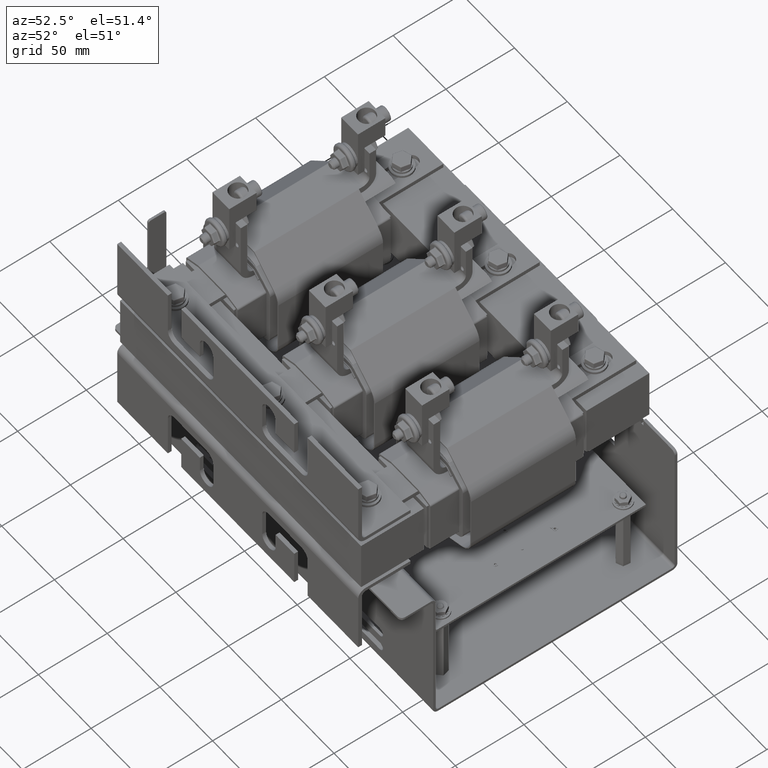
[diagram: clean part render]
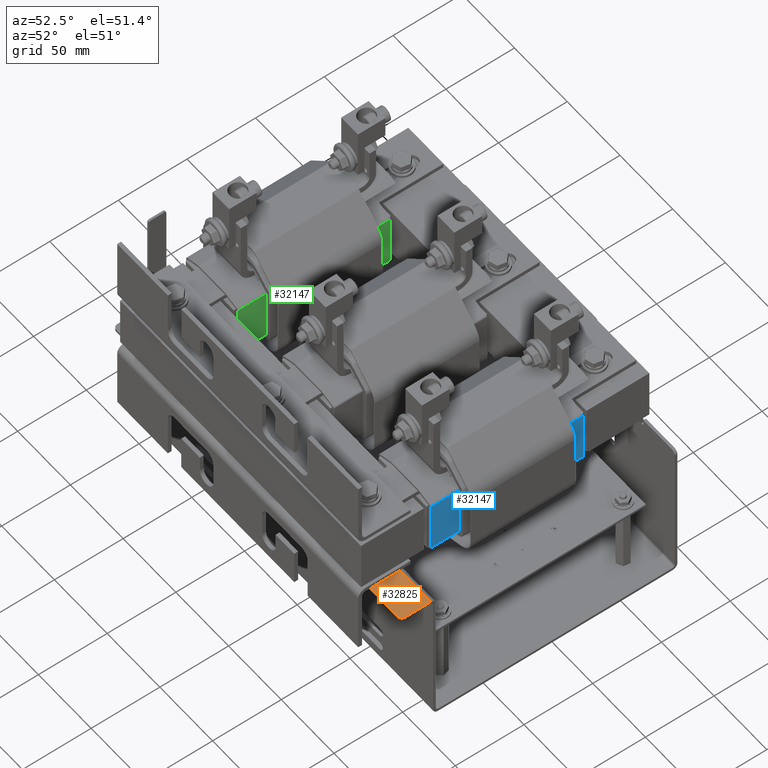
[diagram: same view with three faces highlighted in distinct colors, each labeled with its STEP entity id]
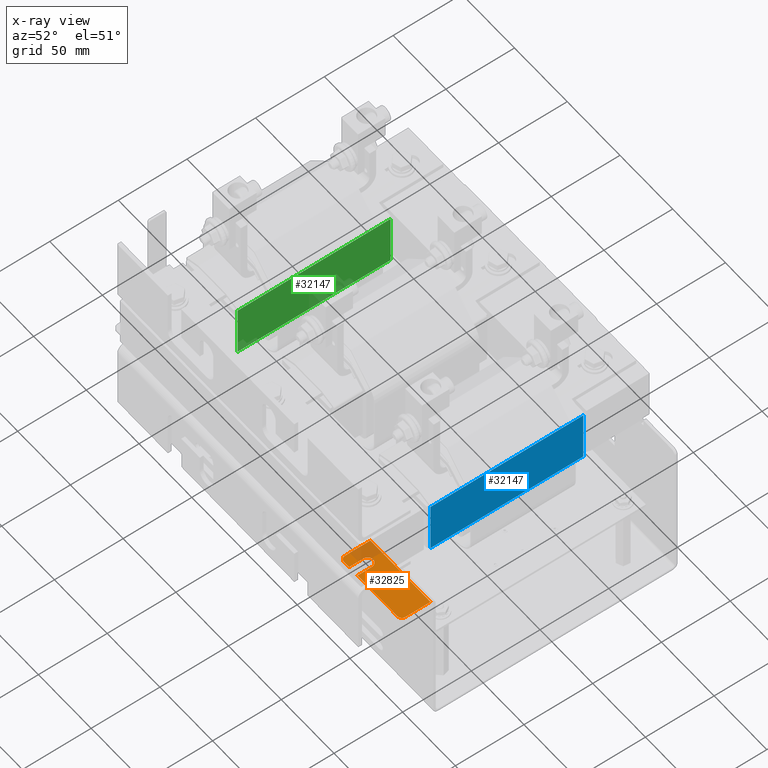
[diagram: x-ray of the same camera — body ghosted, the three highlighted faces saturated]
A machine part, auxiliary view with three faces highlighted in distinct colors.
The next image is the same camera in x-ray (body ghosted, the three faces saturated) — at least one of them is partly hidden behind the body in this view.
Their STEP definitions:

[orange] entity #32825 — the highlighted planar face has unit normal (-0, -0, 1).
#2566=CIRCLE('',#35846,0.125);
#2570=CIRCLE('',#35853,0.125);
#2602=CIRCLE('',#35935,0.155);
#4896=FACE_OUTER_BOUND('',#6785,.T.);
#6785=EDGE_LOOP('',(#27953,#27954,#27955,#27956,#27957,#27958,#27959,#27960,
#27961,#27962));
#9637=LINE('',#55370,#12727);
#9646=LINE('',#55395,#12736);
#9742=LINE('',#55652,#12832);
#9746=LINE('',#55661,#12836);
#9752=LINE('',#55675,#12842);
#9753=LINE('',#55677,#12843);
#9797=LINE('',#55826,#12887);
#12727=VECTOR('',#42652,0.393700787401575);
#12736=VECTOR('',#42673,0.393700787401575);
#12832=VECTOR('',#42927,0.393700787401575);
#12836=VECTOR('',#42937,0.393700787401575);
#12842=VECTOR('',#42953,0.393700787401575);
#12843=VECTOR('',#42956,0.393700787401575);
#12887=VECTOR('',#43148,0.393700787401575);
#15737=VERTEX_POINT('',#55357);
#15738=VERTEX_POINT('',#55358);
#15742=VERTEX_POINT('',#55368);
#15750=VERTEX_POINT('',#55388);
#15751=VERTEX_POINT('',#55389);
#15752=VERTEX_POINT('',#55394);
#15833=VERTEX_POINT('',#55649);
#15834=VERTEX_POINT('',#55651);
#15835=VERTEX_POINT('',#55655);
#15836=VERTEX_POINT('',#55659);
#19805=EDGE_CURVE('',#15737,#15738,#2566,.T.);
#19811=EDGE_CURVE('',#15742,#15737,#9637,.T.);
#19820=EDGE_CURVE('',#15750,#15751,#2570,.T.);
#19823=EDGE_CURVE('',#15751,#15752,#9646,.T.);
#19950=EDGE_CURVE('',#15834,#15833,#9742,.T.);
#19953=EDGE_CURVE('',#15833,#15835,#2602,.T.);
#19955=EDGE_CURVE('',#15835,#15836,#9746,.T.);
#19962=EDGE_CURVE('',#15738,#15836,#9752,.T.);
#19963=EDGE_CURVE('',#15834,#15750,#9753,.T.);
#20039=EDGE_CURVE('',#15742,#15752,#9797,.T.);
#27953=ORIENTED_EDGE('',*,*,#19805,.F.);
#27954=ORIENTED_EDGE('',*,*,#19811,.F.);
#27955=ORIENTED_EDGE('',*,*,#20039,.T.);
#27956=ORIENTED_EDGE('',*,*,#19823,.F.);
#27957=ORIENTED_EDGE('',*,*,#19820,.F.);
#27958=ORIENTED_EDGE('',*,*,#19963,.F.);
#27959=ORIENTED_EDGE('',*,*,#19950,.T.);
#27960=ORIENTED_EDGE('',*,*,#19953,.T.);
#27961=ORIENTED_EDGE('',*,*,#19955,.T.);
#27962=ORIENTED_EDGE('',*,*,#19962,.F.);
#31276=PLANE('',#36023);
#32825=ADVANCED_FACE('',(#4896),#31276,.T.);
#35846=AXIS2_PLACEMENT_3D('',#55359,#42642,#42643);
#35853=AXIS2_PLACEMENT_3D('',#55390,#42667,#42668);
#35935=AXIS2_PLACEMENT_3D('',#55657,#42932,#42933);
#36023=AXIS2_PLACEMENT_3D('',#55840,#43164,#43165);
#42642=DIRECTION('center_axis',(4.22708294357799E-18,1.50618868851318E-15,
-1.));
#42643=DIRECTION('ref_axis',(0.70710678118655,-0.707106781186545,0.));
#42652=DIRECTION('',(4.52371820991719E-35,-1.,-1.7746205551435E-15));
#42667=DIRECTION('center_axis',(4.22708294357799E-18,1.50618868851318E-15,
-1.));
#42668=DIRECTION('ref_axis',(-0.70710678118655,-0.707106781186545,0.));
#42673=DIRECTION('',(-2.89359496970602E-32,1.,1.83585289510087E-15));
#42927=DIRECTION('',(-4.68158981324178E-31,1.,1.50618868851318E-15));
#42932=DIRECTION('center_axis',(4.22708294357799E-18,1.50618868851318E-15,
-1.));
#42933=DIRECTION('ref_axis',(-1.,-4.68074171752959E-31,0.));
#42937=DIRECTION('',(4.68158981324178E-31,-1.,-1.50618868851318E-15));
#42953=DIRECTION('',(-1.,-2.89359496970602E-32,4.52371820991199E-35));
#42956=DIRECTION('',(-1.,-2.89359496970602E-32,4.52371820991199E-35));
#43148=DIRECTION('',(-1.,-6.98912515960972E-33,-4.22708294357799E-18));
#43164=DIRECTION('center_axis',(-4.22708294357799E-18,-1.50618868851318E-15,
1.));
#43165=DIRECTION('ref_axis',(2.89359496970602E-32,-1.,-1.50618868851318E-15));
#55357=CARTESIAN_POINT('',(10.75,-0.8003,4.13));
#55358=CARTESIAN_POINT('',(10.625,-0.9253,4.13));
#55359=CARTESIAN_POINT('Origin',(10.625,-0.8003,4.13));
#55368=CARTESIAN_POINT('',(10.75,-0.0747000000000008,4.13));
#55370=CARTESIAN_POINT('',(10.75,-0.0747000000000008,4.13));
#55388=CARTESIAN_POINT('',(8.625,-0.9253,4.13));
#55389=CARTESIAN_POINT('',(8.5,-0.8003,4.13));
#55390=CARTESIAN_POINT('Origin',(8.625,-0.8003,4.13));
#55394=CARTESIAN_POINT('',(8.5,-0.0747000000000008,4.13));
#55395=CARTESIAN_POINT('',(8.5,0.0942674192806727,4.13));
#55649=CARTESIAN_POINT('',(8.82,-0.515300000000001,4.13));
#55651=CARTESIAN_POINT('',(8.82,-0.9253,4.13));
#55652=CARTESIAN_POINT('',(8.82,-0.713386218216391,4.13));
#55655=CARTESIAN_POINT('',(9.13,-0.515300000000001,4.13));
#55657=CARTESIAN_POINT('Origin',(8.975,-0.515300000000001,4.13));
#55659=CARTESIAN_POINT('',(9.13,-0.9253,4.13));
#55661=CARTESIAN_POINT('',(9.13,-0.465408145179832,4.13));
#55675=CARTESIAN_POINT('',(10.75,-0.9253,4.13));
#55677=CARTESIAN_POINT('',(10.75,-0.9253,4.13));
#55826=CARTESIAN_POINT('',(9.625,-0.0747000000000008,4.13));
#55840=CARTESIAN_POINT('Origin',(9.625,-0.415516290359664,4.13));

[blue] entity #32147 — the highlighted planar face has unit normal (1, 0, 0).
#4218=FACE_OUTER_BOUND('',#6047,.T.);
#6047=EDGE_LOOP('',(#24273,#24274,#24275,#24276));
#8526=LINE('',#51729,#11616);
#8527=LINE('',#51732,#11617);
#8528=LINE('',#51734,#11618);
#8529=LINE('',#51735,#11619);
#11616=VECTOR('',#39315,0.393700787401575);
#11617=VECTOR('',#39318,0.393700787401575);
#11618=VECTOR('',#39319,0.393700787401575);
#11619=VECTOR('',#39320,0.393700787401575);
#14640=VERTEX_POINT('',#51725);
#14641=VERTEX_POINT('',#51727);
#14642=VERTEX_POINT('',#51731);
#14643=VERTEX_POINT('',#51733);
#18184=EDGE_CURVE('',#14640,#14641,#8526,.T.);
#18185=EDGE_CURVE('',#14640,#14642,#8527,.T.);
#18186=EDGE_CURVE('',#14643,#14641,#8528,.T.);
#18187=EDGE_CURVE('',#14642,#14643,#8529,.T.);
#24273=ORIENTED_EDGE('',*,*,#18185,.F.);
#24274=ORIENTED_EDGE('',*,*,#18184,.T.);
#24275=ORIENTED_EDGE('',*,*,#18186,.F.);
#24276=ORIENTED_EDGE('',*,*,#18187,.F.);
#30889=PLANE('',#34736);
#32147=ADVANCED_FACE('',(#4218),#30889,.T.);
#34736=AXIS2_PLACEMENT_3D('',#51730,#39316,#39317);
#39315=DIRECTION('',(0.,0.,1.));
#39316=DIRECTION('center_axis',(-1.,1.45698559662311E-16,0.));
#39317=DIRECTION('ref_axis',(-1.45698559662311E-16,-1.,0.));
#39318=DIRECTION('',(1.45698559662311E-16,1.,0.));
#39319=DIRECTION('',(-1.45698559662311E-16,-1.,0.));
#39320=DIRECTION('',(0.,0.,1.));
#51725=CARTESIAN_POINT('',(-0.0600000000012421,1.34954929995811E-12,0.));
#51727=CARTESIAN_POINT('',(-0.0600000000012421,1.34940178016645E-12,4.38));
#51729=CARTESIAN_POINT('',(-0.0600000000012421,1.34954929995811E-12,0.));
#51730=CARTESIAN_POINT('Origin',(-0.0600000000012419,1.49999999999912,0.));
#51731=CARTESIAN_POINT('',(-0.0600000000012419,1.49999999999912,0.));
#51732=CARTESIAN_POINT('',(-0.0600000000012421,1.34954929995811E-12,0.));
#51733=CARTESIAN_POINT('',(-0.0600000000012419,1.49999999999912,4.38));
#51734=CARTESIAN_POINT('',(-0.0600000000012421,1.34954929995811E-12,4.38));
#51735=CARTESIAN_POINT('',(-0.0600000000012419,1.49999999999912,0.));

[green] entity #32147 — the highlighted planar face has unit normal (1, 0, 0).
#4218=FACE_OUTER_BOUND('',#6047,.T.);
#6047=EDGE_LOOP('',(#24273,#24274,#24275,#24276));
#8526=LINE('',#51729,#11616);
#8527=LINE('',#51732,#11617);
#8528=LINE('',#51734,#11618);
#8529=LINE('',#51735,#11619);
#11616=VECTOR('',#39315,0.393700787401575);
#11617=VECTOR('',#39318,0.393700787401575);
#11618=VECTOR('',#39319,0.393700787401575);
#11619=VECTOR('',#39320,0.393700787401575);
#14640=VERTEX_POINT('',#51725);
#14641=VERTEX_POINT('',#51727);
#14642=VERTEX_POINT('',#51731);
#14643=VERTEX_POINT('',#51733);
#18184=EDGE_CURVE('',#14640,#14641,#8526,.T.);
#18185=EDGE_CURVE('',#14640,#14642,#8527,.T.);
#18186=EDGE_CURVE('',#14643,#14641,#8528,.T.);
#18187=EDGE_CURVE('',#14642,#14643,#8529,.T.);
#24273=ORIENTED_EDGE('',*,*,#18185,.F.);
#24274=ORIENTED_EDGE('',*,*,#18184,.T.);
#24275=ORIENTED_EDGE('',*,*,#18186,.F.);
#24276=ORIENTED_EDGE('',*,*,#18187,.F.);
#30889=PLANE('',#34736);
#32147=ADVANCED_FACE('',(#4218),#30889,.T.);
#34736=AXIS2_PLACEMENT_3D('',#51730,#39316,#39317);
#39315=DIRECTION('',(0.,0.,1.));
#39316=DIRECTION('center_axis',(-1.,1.45698559662311E-16,0.));
#39317=DIRECTION('ref_axis',(-1.45698559662311E-16,-1.,0.));
#39318=DIRECTION('',(1.45698559662311E-16,1.,0.));
#39319=DIRECTION('',(-1.45698559662311E-16,-1.,0.));
#39320=DIRECTION('',(0.,0.,1.));
#51725=CARTESIAN_POINT('',(-0.0600000000012421,1.34954929995811E-12,0.));
#51727=CARTESIAN_POINT('',(-0.0600000000012421,1.34940178016645E-12,4.38));
#51729=CARTESIAN_POINT('',(-0.0600000000012421,1.34954929995811E-12,0.));
#51730=CARTESIAN_POINT('Origin',(-0.0600000000012419,1.49999999999912,0.));
#51731=CARTESIAN_POINT('',(-0.0600000000012419,1.49999999999912,0.));
#51732=CARTESIAN_POINT('',(-0.0600000000012421,1.34954929995811E-12,0.));
#51733=CARTESIAN_POINT('',(-0.0600000000012419,1.49999999999912,4.38));
#51734=CARTESIAN_POINT('',(-0.0600000000012421,1.34954929995811E-12,4.38));
#51735=CARTESIAN_POINT('',(-0.0600000000012419,1.49999999999912,0.));